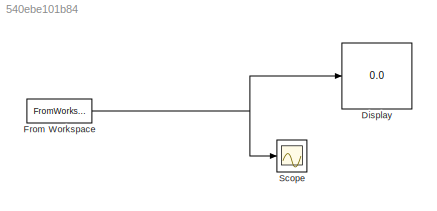
MODEL slx_540ebe101b84
KIND model
WORKSPACE source: external: MAT-File  (data not in archive)
BLOCK [Display] Display
  Decimation = 1
  Ports = [1]
BLOCK [FromWorkspace] From Workspace
  Interpolate = off
  OutputAfterFinalValue = Setting to zero
  VariableName = ts_coll.Signal_vector_2
  ZeroCross = on
BLOCK [Scope] Scope
  DataFormat = StructureWithTime
  Floating = off
  NumInputPorts = 1
  Ports = [1]
  SampleTime = 0
  ShowLegends = off
NET From Workspace:1 -> Display:1, Scope:1
note: NET lines group one-source signal fan-out (src -> all destinations, sorted); 1:1 wires keep LINE
